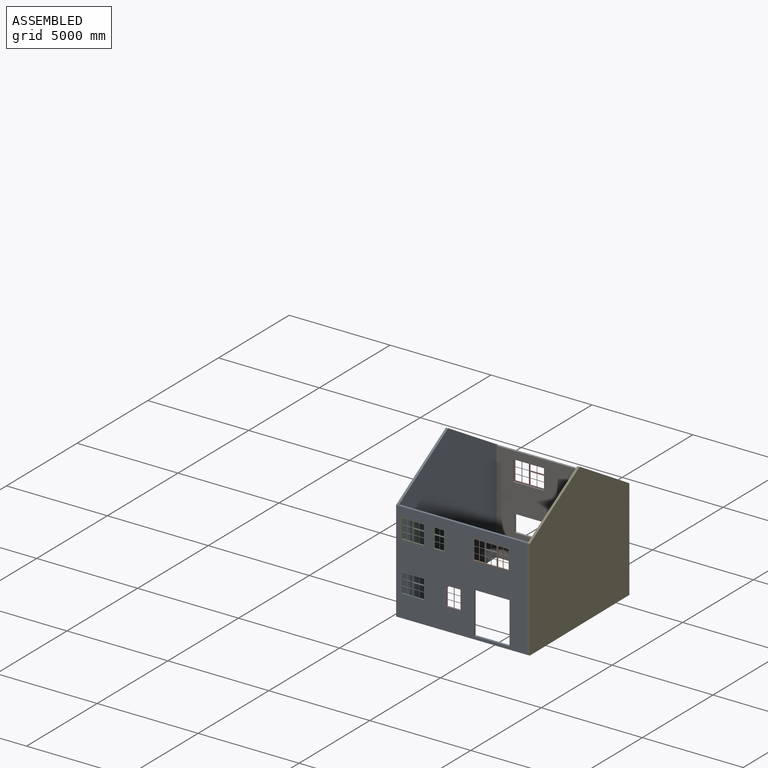
[diagram: assembled view]
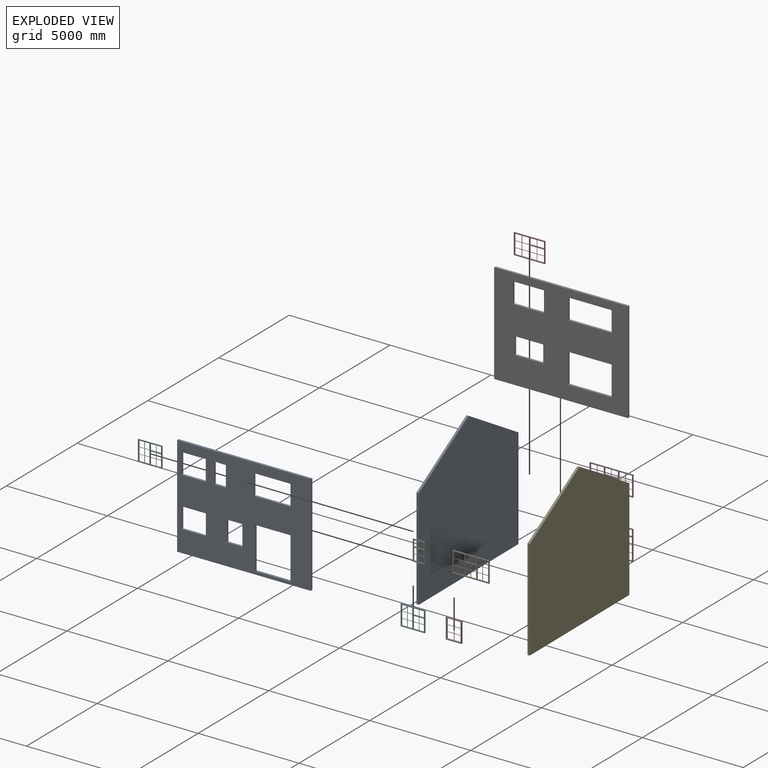
[diagram: exploded view]
GUIDED TOUR — MATED ASSEMBLY (Onshape document ad327fb9f70c7c02ca166393, AutoMate assembly ad327fb9f70c7c02ca166393_e42b151d0dddc3678c9ccd06_790ce3b8b7bdf82932ab4021_default)

This assembly has 12 components, labeled P0..P11 below (a component is one placed occurrence of a part; the same part can appear more than once), held together by 33 mates. A mate is a constraint between two components; its type names the relative motion it leaves free:
  PLANAR — leaves sliding in the plane through the listed point (normal = the listed direction) and rotation about that normal free.
Axis/direction vectors are unit vectors and 'through' points are millimeter coordinates, both in the assembly's world frame.

MATES
  1. PLANAR "Planar 12": P1 <-> P8, direction (0.005, -1.000, 0.000) through (1860.18, -4066.74, 3330.43) mm
  2. PLANAR "Planar 16": P9 <-> P6, direction (0.000, 0.000, 1.000) through (1852.17, 3008.31, 1499.83) mm
  3. PLANAR "Planar 18": P9 <-> P6, direction (-0.005, 1.000, 0.000) through (1852.06, 3033.31, 827.41) mm
  4. PLANAR "Planar 8": P0 <-> P6, direction (-0.005, 1.000, 0.000) through (-2811.39, 3011.17, 1812.83) mm
  5. PLANAR "Planar 25": P5 <-> P8, direction (0.000, 0.000, 1.000) through (-2011.20, -4085.11, 1402.83) mm
  6. PLANAR "Planar 21": P8 <-> P2, direction (0.005, -1.000, 0.000) through (438.30, -4073.49, 1857.86) mm
  7. PLANAR "Planar 22": P7 <-> P6, direction (0.000, 0.000, 1.000) through (-1175.79, 2993.93, 3932.83) mm
  8. PLANAR "Planar 7": P6 <-> P0, direction (-1.000, -0.005, 0.000) through (-2867.13, 2954.90, 1812.83) mm
  9. PLANAR "Planar 6": P8 <-> P4, direction (0.000, 0.000, -1.000) through (466.01, -4017.35, -687.17) mm
  10. PLANAR "Planar 31": P10 <-> P8, direction (0.005, -1.000, 0.000) through (-713.71, -4078.95, 3495.33) mm
  11. PLANAR "Planar 3": P6 <-> P4, direction (0.000, 0.000, -1.000) through (432.84, 2970.57, -687.17) mm
  12. PLANAR "Planar 14": P3 <-> P6, direction (0.000, 0.000, 1.000) through (1860.17, 3008.34, 3932.83) mm
  13. PLANAR "Planar 26": P5 <-> P8, direction (-1.000, -0.005, 0.000) through (-2608.81, -4062.95, 892.83) mm
  14. PLANAR "Planar 19": P8 <-> P2, direction (1.000, 0.005, 0.000) through (-2608.95, -4031.95, 3322.83) mm
  15. PLANAR "Planar 24": P7 <-> P6, direction (-0.005, 1.000, 0.000) through (-1136.16, 3019.12, 3438.84) mm
  16. PLANAR "Planar 1": P6 <-> P4, direction (1.000, 0.005, 0.000) through (3732.80, 2986.23, 1812.83) mm
  17. PLANAR "Planar 5": P8 <-> P4, direction (1.000, 0.005, 0.000) through (3765.97, -4001.69, 1812.83) mm
  18. PLANAR "Planar 28": P5 <-> P8, direction (0.005, -1.000, 0.000) through (-1984.51, -4084.99, 906.75) mm
  19. PLANAR "Planar 4": P4 <-> P8, direction (0.005, -1.000, 0.000) through (3710.24, -4057.95, 1812.83) mm
  20. PLANAR "Planar 9": P0 <-> P6, direction (0.000, 0.000, -1.000) through (-2794.54, -538.79, -687.17) mm
  21. PLANAR "Planar 30": P10 <-> P8, direction (1.000, 0.005, 0.000) through (-423.83, -4052.58, 3322.83) mm
  22. PLANAR "Planar 32": P11 <-> P8, direction (0.000, 0.000, 1.000) through (6.10, -4038.04, 1402.83) mm
  23. PLANAR "Planar 17": P9 <-> P6, direction (-1.000, -0.005, 0.000) through (779.69, 3003.22, 764.83) mm
  24. PLANAR "Planar 11": P1 <-> P8, direction (1.000, 0.005, 0.000) through (2766.13, -4037.43, 3325.33) mm
  25. PLANAR "Planar 20": P2 <-> P8, direction (0.000, 0.000, 1.000) through (-2013.81, -4060.13, 3832.83) mm
  26. PLANAR "Planar 13": P6 <-> P3, direction (-1.000, -0.005, 0.000) through (2932.81, 2982.44, 3422.83) mm
  27. PLANAR "Planar 23": P7 <-> P6, direction (1.000, 0.005, 0.000) through (-408.30, 2997.58, 3422.83) mm
  28. PLANAR "Planar 34": P11 <-> P8, direction (0.005, -1.000, 0.000) through (6.28, -4075.54, 892.83) mm
  29. PLANAR "Planar 29": P10 <-> P8, direction (0.000, 0.000, 1.000) through (-713.83, -4053.95, 3832.83) mm
  30. PLANAR "Planar 2": P4 <-> P6, direction (-0.005, 1.000, 0.000) through (3676.54, 3041.97, 1812.83) mm
  31. PLANAR "Planar 10": P1 <-> P8, direction (0.000, 0.000, 1.000) through (1858.64, -4041.74, 3837.83) mm
  32. PLANAR "Planar 33": P11 <-> P8, direction (1.000, 0.005, 0.000) through (391.10, -4036.21, 892.83) mm
  33. PLANAR "Planar 15": P3 <-> P6, direction (-0.005, 1.000, 0.000) through (1860.06, 3033.34, 3887.83) mm

ASSEMBLY ORDER
  1. P4 — the base component [order verified]
  2. P3 [order verified]
  3. P9 [order verified]
  4. P1 [order verified]
  5. P8 [order verified]
  6. P6 [order verified]
  7. P11 [order verified]
  8. P10 [order verified]
  9. P7 [order verified]
  10. P5 [order verified]
  11. P2 [order verified]
  12. P0 [order verified]
Order-tag legend:
  [order verified] — this step's position reverses a verified removal order: the component was checked to insert without passing through the ones already placed.

Of the 12 components, 12 carry the full construction recipe — the FeatureScript program that regenerates the part's solid from scratch; the rest are supplied as boundary geometry only.
Each toured component is shown spotlighted twice — in the assembled view, then in the exploded view, where a leader line traces a displaced component back to its assembled socket (saturated green if recipe-attached, orange if geometry-only; every other component desaturated gray) — followed by its recipe or geometry summary and the mates that hold it.
NOTE — this tour is split across 2 documents so each fits a 32k-token context. This is document 1: the component sections continue in the remaining 1 document, each repeating the header above.
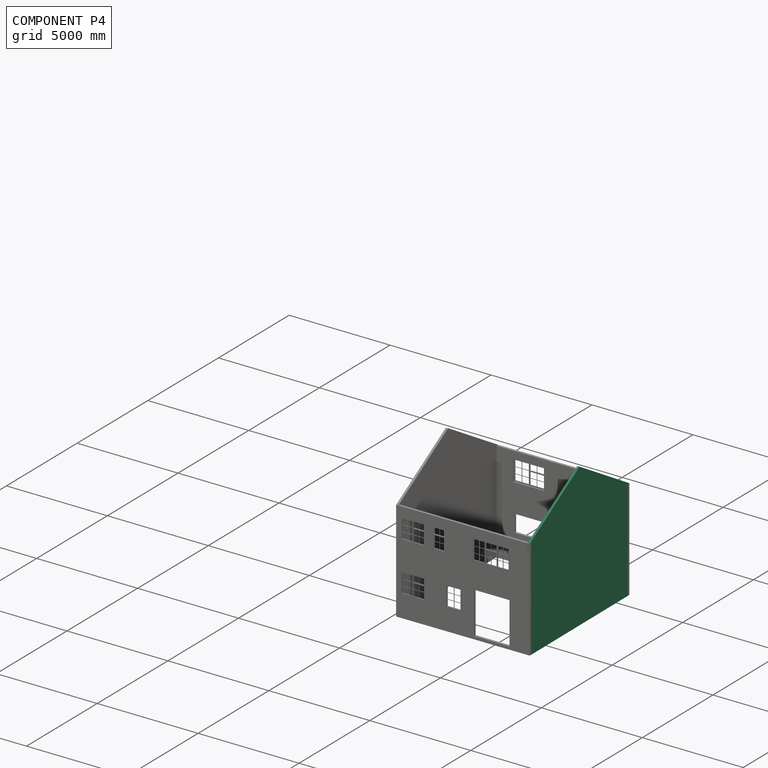
[diagram: component P4 — assembled]
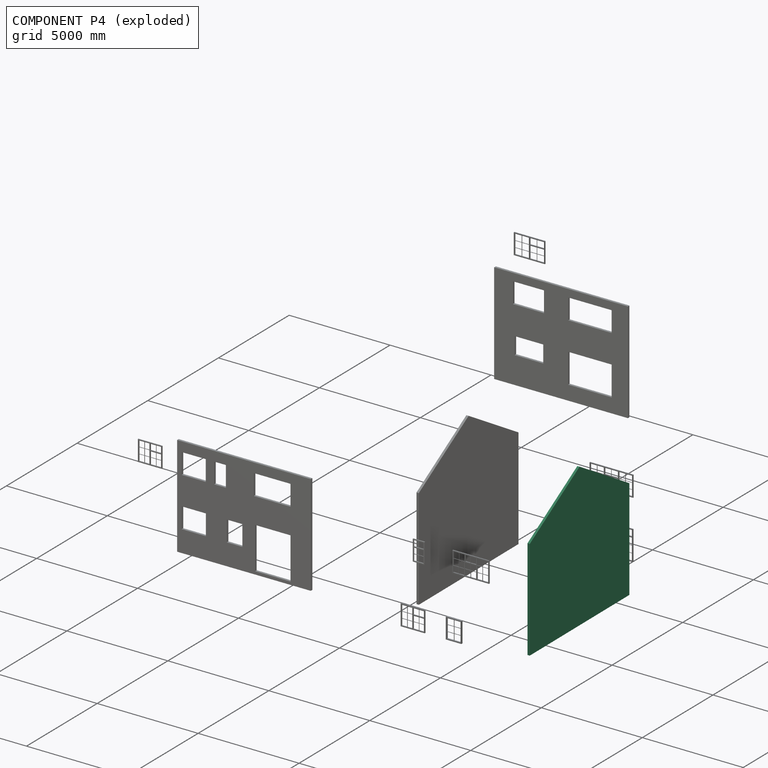
[diagram: component P4 — exploded]
COMPONENT P4 — same part as P0 (CADFS 00879208); its construction recipe is shown at P0.
Held by: PLANAR mate "Planar 6" to P8; PLANAR mate "Planar 3" to P6; PLANAR mate "Planar 1" to P6; PLANAR mate "Planar 5" to P8; PLANAR mate "Planar 4" to P8; PLANAR mate "Planar 2" to P6.
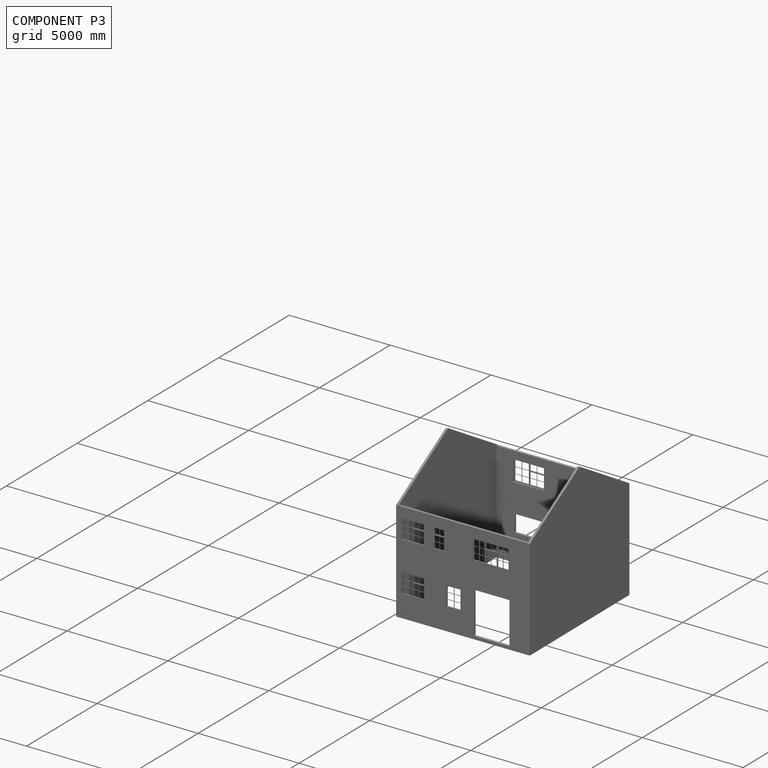
[diagram: component P3 — assembled]
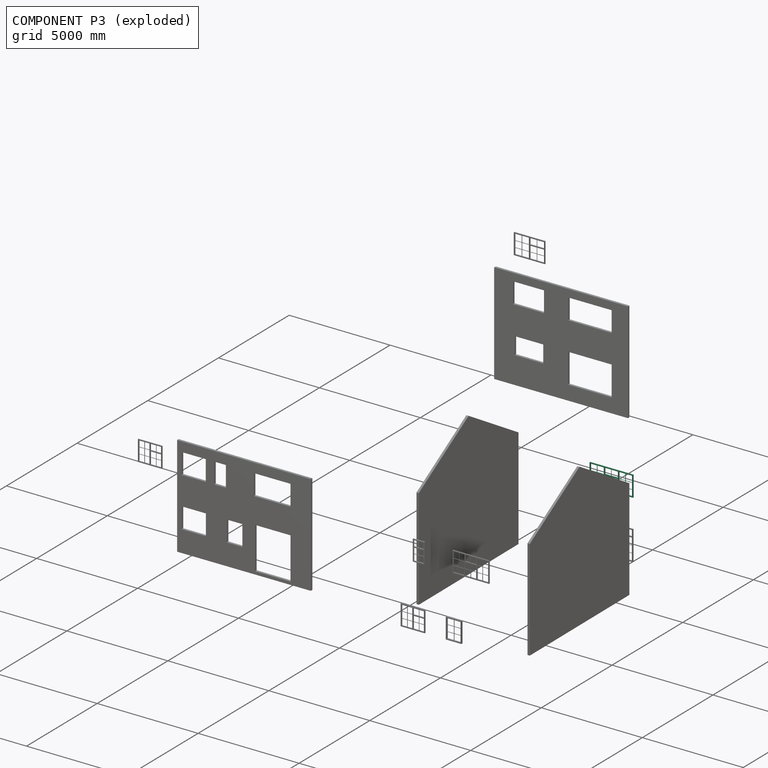
[diagram: component P3 — exploded]
COMPONENT P3 — recipe-attached (CADFS 00879211, mesh-verified: the recipe's output STEP matches this component's geometry to below the mesh-comparison resolution (tessellation chordal tolerance ~3.56 mm)).
Held by: PLANAR mate "Planar 14" to P6; PLANAR mate "Planar 13" to P6; PLANAR mate "Planar 15" to P6.
Construction recipe (FeatureScript — the CAD program that rebuilds this solid; sketch coordinates are in the units given by the * unit suffixes, e.g. mm):

FeatureScript 2599;
import(path : "onshape/std/geometry.fs", version : "2599.0");
import(path : "onshape/std/common.fs", version : "2599.0");
const mm = millimeter;
const VERTEX = EntityType.VERTEX;
const EDGE = EntityType.EDGE;
const FACE = EntityType.FACE;
const BODY = EntityType.BODY;
function v(x, y){return vector(x, y);}
function OD(order){return orderDisambiguation(order);}
function OSD(set){return originalSetDisambiguation(set);}
function TD(topology){return topologyDisambiguation(topology);}
function TDD(query){return trueDependencyDisambiguation(query);}
function sQuery(a, b, c) {return sketchEntityQuery(a, b, c);}

annotation { "Feature Type Name" : "Feature", "Feature Type Description" : "" }
export const myFeature = defineFeature(function(context is Context, id is Id, definition is map)
    precondition{}
    {
        {
            var Q0;
            Q0=qCreatedBy(makeId("Front.planeOp"),FACE);
            var sketch = newSketch(context, id + "F0", { "sketchPlane" : qUnion([Q0])});
            skLineSegment(sketch, "E0.bottom", {"start": v(0, 0) * mm, "end": v(2145, 0) * mm});
            skLineSegment(sketch, "E0.top", {"start": v(0, 1020) * mm, "end": v(2145, 1020) * mm});
            skLineSegment(sketch, "E0.left", {"start": v(0, 0) * mm, "end": v(0, 1020) * mm});
            skLineSegment(sketch, "E0.right", {"start": v(2145, 0) * mm, "end": v(2145, 1020) * mm});
            skLineSegment(sketch, "E1.bottom", {"start": v(45, 975) * mm, "end": v(700, 975) * mm});
            skLineSegment(sketch, "E1.top", {"start": v(45, 45) * mm, "end": v(700, 45) * mm});
            skLineSegment(sketch, "E1.left", {"start": v(45, 975) * mm, "end": v(45, 45) * mm});
            skLineSegment(sketch, "E1.right", {"start": v(700, 975) * mm, "end": v(700, 45) * mm});
            skLineSegment(sketch, "E2.bottom", {"start": v(745, 975) * mm, "end": v(1400, 975) * mm});
            skLineSegment(sketch, "E2.top", {"start": v(745, 682.5) * mm, "end": v(1400, 682.5) * mm});
            skLineSegment(sketch, "E2.left", {"start": v(745, 975) * mm, "end": v(745, 682.5) * mm});
            skLineSegment(sketch, "E2.right", {"start": v(1400, 975) * mm, "end": v(1400, 682.5) * mm});
            skLineSegment(sketch, "E3.bottom", {"start": v(745, 637.5) * mm, "end": v(1400, 637.5) * mm});
            skLineSegment(sketch, "E3.top", {"start": v(745, 45) * mm, "end": v(1400, 45) * mm});
            skLineSegment(sketch, "E3.left", {"start": v(745, 637.5) * mm, "end": v(745, 45) * mm});
            skLineSegment(sketch, "E3.right", {"start": v(1400, 637.5) * mm, "end": v(1400, 45) * mm});
            skLineSegment(sketch, "E4.bottom", {"start": v(1445, 975) * mm, "end": v(2100, 975) * mm});
            skLineSegment(sketch, "E4.top", {"start": v(1445, 45) * mm, "end": v(2100, 45) * mm});
            skLineSegment(sketch, "E4.left", {"start": v(1445, 975) * mm, "end": v(1445, 45) * mm});
            skLineSegment(sketch, "E4.right", {"start": v(2100, 975) * mm, "end": v(2100, 45) * mm});
            skSolve(sketch);
        }
        {
            var Q0;
            Q0=qSketchRegion(id+"F0",true);
            extrude(context, id + "F1", {"entities" : qUnion([Q0]), "depth" : 50 * mm, "offsetDistance" : 25 * mm});
        }
        {
            var Q0;
            Q0=qCreatedBy(makeId("Front.planeOp"),FACE);
            var sketch = newSketch(context, id + "F2", { "sketchPlane" : qUnion([Q0])});
            skLineSegment(sketch, "E5.bottom", {"start": v(1765, 975) * mm, "end": v(1780, 975) * mm});
            skLineSegment(sketch, "E5.top", {"start": v(1765, 45) * mm, "end": v(1780, 45) * mm});
            skLineSegment(sketch, "E5.left", {"start": v(1765, 975) * mm, "end": v(1765, 660) * mm});
            skLineSegment(sketch, "E5.right", {"start": v(1780, 975) * mm, "end": v(1780, 660) * mm});
            skLineSegment(sketch, "E6.bottom", {"start": v(1445, 660) * mm, "end": v(1765, 660) * mm});
            skLineSegment(sketch, "E6.top", {"start": v(1445, 675) * mm, "end": v(1765, 675) * mm});
            skLineSegment(sketch, "E6.left", {"start": v(1445, 675) * mm, "end": v(1445, 660) * mm});
            skLineSegment(sketch, "E6.right", {"start": v(2100, 675) * mm, "end": v(2100, 660) * mm});
            skLineSegment(sketch, "E7.bottom", {"start": v(1445, 345) * mm, "end": v(1765, 345) * mm});
            skLineSegment(sketch, "E7.top", {"start": v(1445, 360) * mm, "end": v(1765, 360) * mm});
            skLineSegment(sketch, "E7.left", {"start": v(1445, 345) * mm, "end": v(1445, 360) * mm});
            skLineSegment(sketch, "E7.right", {"start": v(2100, 345) * mm, "end": v(2100, 360) * mm});
            skLineSegment(sketch, "E8.trimOffspring", {"start": v(1765, 675) * mm, "end": v(1765, 360) * mm});
            skLineSegment(sketch, "E9.trimOffspring", {"start": v(1780, 660) * mm, "end": v(2100, 660) * mm});
            skLineSegment(sketch, "E10.trimOffspring", {"start": v(1780, 675) * mm, "end": v(1780, 360) * mm});
            skLineSegment(sketch, "E11.trimOffspring", {"start": v(1780, 675) * mm, "end": v(2100, 675) * mm});
            skLineSegment(sketch, "E12.trimOffspring", {"start": v(1780, 360) * mm, "end": v(2100, 360) * mm});
            skLineSegment(sketch, "E13.trimOffspring", {"start": v(1765, 345) * mm, "end": v(1765, 45) * mm});
            skLineSegment(sketch, "E14.trimOffspring", {"start": v(1780, 345) * mm, "end": v(2100, 345) * mm});
            skLineSegment(sketch, "E15.trimOffspring", {"start": v(1780, 345) * mm, "end": v(1780, 45) * mm});
            skLineSegment(sketch, "E16.bottom", {"start": v(1065, 975) * mm, "end": v(1080, 975) * mm});
            skLineSegment(sketch, "E16.top", {"start": v(1065, 682.5) * mm, "end": v(1080, 682.5) * mm});
            skLineSegment(sketch, "E16.left", {"start": v(1065, 975) * mm, "end": v(1065, 682.5) * mm});
            skLineSegment(sketch, "E16.right", {"start": v(1080, 975) * mm, "end": v(1080, 682.5) * mm});
            skLineSegment(sketch, "E17.bottom", {"start": v(1065, 637.5) * mm, "end": v(1080, 637.5) * mm});
            skLineSegment(sketch, "E17.top", {"start": v(1065, 45) * mm, "end": v(1080, 45) * mm});
            skLineSegment(sketch, "E17.left", {"start": v(1065, 637.5) * mm, "end": v(1065, 360) * mm});
            skLineSegment(sketch, "E17.right", {"start": v(1080, 637.5) * mm, "end": v(1080, 360) * mm});
            skLineSegment(sketch, "E18.bottom", {"start": v(745, 360) * mm, "end": v(1065, 360) * mm});
            skLineSegment(sketch, "E18.top", {"start": v(745, 345) * mm, "end": v(1065, 345) * mm});
            skLineSegment(sketch, "E18.left", {"start": v(745, 360) * mm, "end": v(745, 345) * mm});
            skLineSegment(sketch, "E18.right", {"start": v(1400, 360) * mm, "end": v(1400, 345) * mm});
            skLineSegment(sketch, "E19.trimOffspring", {"start": v(1080, 360) * mm, "end": v(1400, 360) * mm});
            skLineSegment(sketch, "E20.trimOffspring", {"start": v(1065, 345) * mm, "end": v(1065, 45) * mm});
            skLineSegment(sketch, "E21.trimOffspring", {"start": v(1080, 345) * mm, "end": v(1400, 345) * mm});
            skLineSegment(sketch, "E22.trimOffspring", {"start": v(1080, 345) * mm, "end": v(1080, 45) * mm});
            skLineSegment(sketch, "E23.bottom", {"start": v(365, 975) * mm, "end": v(380, 975) * mm});
            skLineSegment(sketch, "E23.top", {"start": v(365, 45) * mm, "end": v(380, 45) * mm});
            skLineSegment(sketch, "E23.left", {"start": v(365, 975) * mm, "end": v(365, 675) * mm});
            skLineSegment(sketch, "E23.right", {"start": v(380, 975) * mm, "end": v(380, 675) * mm});
            skLineSegment(sketch, "E24.bottom", {"start": v(45, 660) * mm, "end": v(365, 660) * mm});
            skLineSegment(sketch, "E24.top", {"start": v(45, 675) * mm, "end": v(365, 675) * mm});
            skLineSegment(sketch, "E24.left", {"start": v(45, 675) * mm, "end": v(45, 660) * mm});
            skLineSegment(sketch, "E24.right", {"start": v(700, 675) * mm, "end": v(700, 660) * mm});
            skLineSegment(sketch, "E25.bottom", {"start": v(45, 360) * mm, "end": v(365, 360) * mm});
            skLineSegment(sketch, "E25.top", {"start": v(45, 345) * mm, "end": v(365, 345) * mm});
            skLineSegment(sketch, "E25.left", {"start": v(45, 360) * mm, "end": v(45, 345) * mm});
            skLineSegment(sketch, "E25.right", {"start": v(700, 360) * mm, "end": v(700, 345) * mm});
            skLineSegment(sketch, "E26.trimOffspring", {"start": v(380, 675) * mm, "end": v(700, 675) * mm});
            skLineSegment(sketch, "E27.trimOffspring", {"start": v(365, 660) * mm, "end": v(365, 360) * mm});
            skLineSegment(sketch, "E28.trimOffspring", {"start": v(380, 660) * mm, "end": v(700, 660) * mm});
            skLineSegment(sketch, "E29.trimOffspring", {"start": v(380, 660) * mm, "end": v(380, 360) * mm});
            skLineSegment(sketch, "E30.trimOffspring", {"start": v(380, 360) * mm, "end": v(700, 360) * mm});
            skLineSegment(sketch, "E31.trimOffspring", {"start": v(365, 345) * mm, "end": v(365, 45) * mm});
            skLineSegment(sketch, "E32.trimOffspring", {"start": v(380, 345) * mm, "end": v(700, 345) * mm});
            skLineSegment(sketch, "E33.trimOffspring", {"start": v(380, 345) * mm, "end": v(380, 45) * mm});
            skSolve(sketch);
        }
        {
            var Q0;
            Q0=qSketchRegion(id+"F2",true);
            extrude(context, id + "F3", {"entities" : qUnion([Q0]), "operationType" : NewBodyOperationType.ADD, "depth" : 20 * mm, "offsetDistance" : 25 * mm});
        }
    });
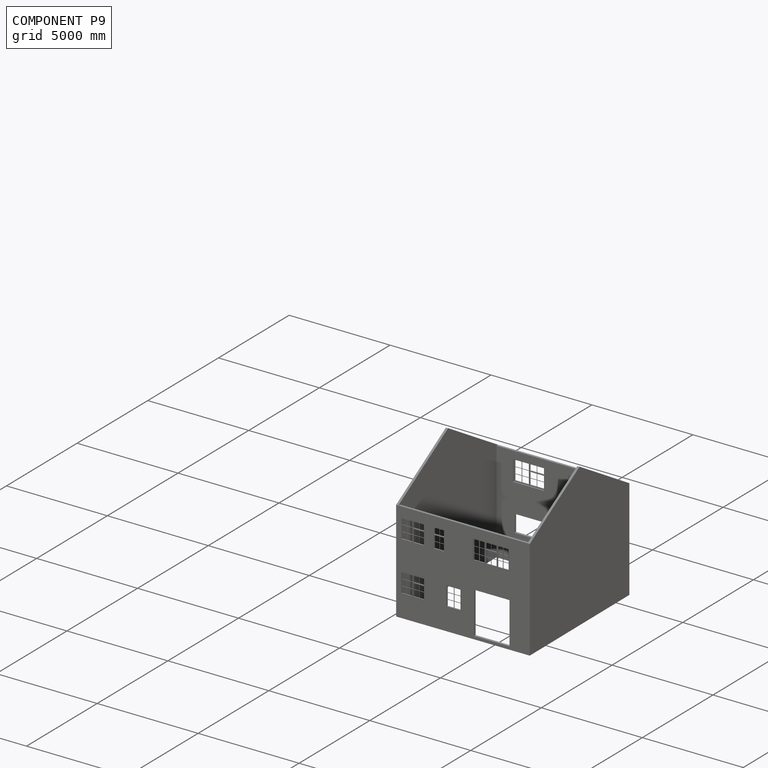
[diagram: component P9 — assembled]
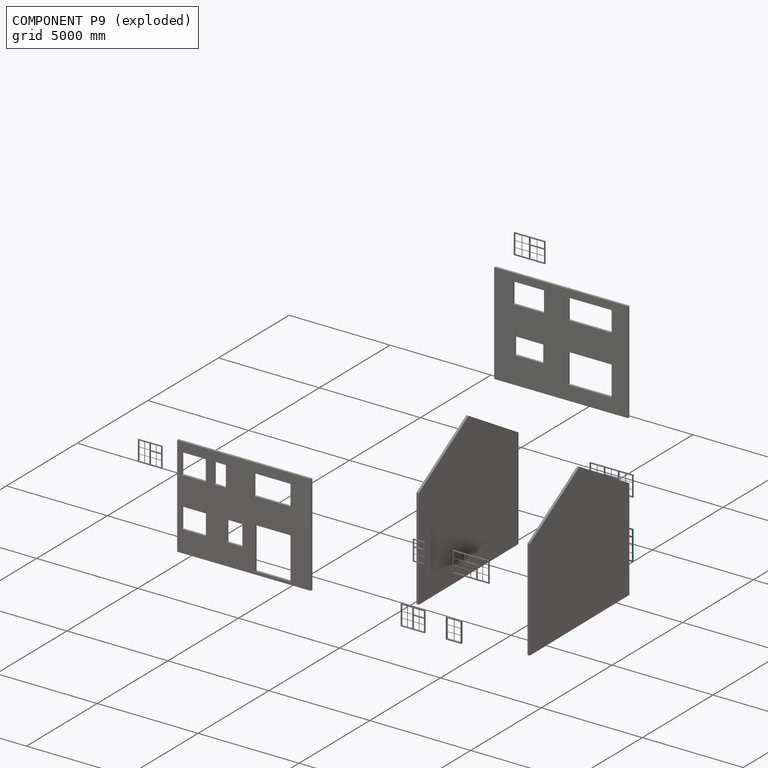
[diagram: component P9 — exploded]
COMPONENT P9 — recipe-attached (CADFS 00879212, mesh-verified: the recipe's output STEP matches this component's geometry to below the mesh-comparison resolution (tessellation chordal tolerance ~3.9 mm)).
Held by: PLANAR mate "Planar 16" to P6; PLANAR mate "Planar 18" to P6; PLANAR mate "Planar 17" to P6.
Construction recipe (FeatureScript — the CAD program that rebuilds this solid; sketch coordinates are in the units given by the * unit suffixes, e.g. mm):

FeatureScript 2599;
import(path : "onshape/std/geometry.fs", version : "2599.0");
import(path : "onshape/std/common.fs", version : "2599.0");
const mm = millimeter;
const VERTEX = EntityType.VERTEX;
const EDGE = EntityType.EDGE;
const FACE = EntityType.FACE;
const BODY = EntityType.BODY;
function v(x, y){return vector(x, y);}
function OD(order){return orderDisambiguation(order);}
function OSD(set){return originalSetDisambiguation(set);}
function TD(topology){return topologyDisambiguation(topology);}
function TDD(query){return trueDependencyDisambiguation(query);}
function sQuery(a, b, c) {return sketchEntityQuery(a, b, c);}

annotation { "Feature Type Name" : "Feature", "Feature Type Description" : "" }
export const myFeature = defineFeature(function(context is Context, id is Id, definition is map)
    precondition{}
    {
        {
            var Q0;
            Q0=qCreatedBy(makeId("Front.planeOp"),FACE);
            var sketch = newSketch(context, id + "F0", { "sketchPlane" : qUnion([Q0])});
            skLineSegment(sketch, "E0.bottom", {"start": v(0, 0) * mm, "end": v(2145, 0) * mm});
            skLineSegment(sketch, "E0.top", {"start": v(0, 1470) * mm, "end": v(2145, 1470) * mm});
            skLineSegment(sketch, "E0.left", {"start": v(0, 0) * mm, "end": v(0, 1470) * mm});
            skLineSegment(sketch, "E0.right", {"start": v(2145, 0) * mm, "end": v(2145, 1470) * mm});
            skLineSegment(sketch, "E1.bottom", {"start": v(45, 1425) * mm, "end": v(700, 1425) * mm});
            skLineSegment(sketch, "E1.top", {"start": v(45, 45) * mm, "end": v(700, 45) * mm});
            skLineSegment(sketch, "E1.left", {"start": v(45, 1425) * mm, "end": v(45, 1132.5) * mm});
            skLineSegment(sketch, "E1.right", {"start": v(700, 1425) * mm, "end": v(700, 1132.5) * mm});
            skLineSegment(sketch, "E2.bottom", {"start": v(745, 1425) * mm, "end": v(1400, 1425) * mm});
            skLineSegment(sketch, "E2.top", {"start": v(745, 1132.5) * mm, "end": v(1400, 1132.5) * mm});
            skLineSegment(sketch, "E2.left", {"start": v(745, 1425) * mm, "end": v(745, 1132.5) * mm});
            skLineSegment(sketch, "E2.right", {"start": v(1400, 1425) * mm, "end": v(1400, 1132.5) * mm});
            skLineSegment(sketch, "E3.bottom", {"start": v(745, 1087.5) * mm, "end": v(1400, 1087.5) * mm});
            skLineSegment(sketch, "E3.top", {"start": v(745, 45) * mm, "end": v(1400, 45) * mm});
            skLineSegment(sketch, "E3.left", {"start": v(745, 1087.5) * mm, "end": v(745, 45) * mm});
            skLineSegment(sketch, "E3.right", {"start": v(1400, 1087.5) * mm, "end": v(1400, 45) * mm});
            skLineSegment(sketch, "E4.bottom", {"start": v(1445, 1425) * mm, "end": v(2100, 1425) * mm});
            skLineSegment(sketch, "E4.top", {"start": v(1445, 45) * mm, "end": v(2100, 45) * mm});
            skLineSegment(sketch, "E4.left", {"start": v(1445, 1425) * mm, "end": v(1445, 1132.5) * mm});
            skLineSegment(sketch, "E4.right", {"start": v(2100, 1425) * mm, "end": v(2100, 1132.5) * mm});
            skLineSegment(sketch, "E5.bottom", {"start": v(45, 1132.5) * mm, "end": v(700, 1132.5) * mm});
            skLineSegment(sketch, "E5.top", {"start": v(45, 1087.5) * mm, "end": v(700, 1087.5) * mm});
            skLineSegment(sketch, "E6.trimOffspring", {"start": v(45, 1087.5) * mm, "end": v(45, 45) * mm});
            skLineSegment(sketch, "E7.trimOffspring", {"start": v(700, 1087.5) * mm, "end": v(700, 45) * mm});
            skLineSegment(sketch, "E8.bottom", {"start": v(1445, 1132.5) * mm, "end": v(2100, 1132.5) * mm});
            skLineSegment(sketch, "E8.top", {"start": v(1445, 1087.5) * mm, "end": v(2100, 1087.5) * mm});
            skLineSegment(sketch, "E9.trimOffspring", {"start": v(1445, 1087.5) * mm, "end": v(1445, 45) * mm});
            skLineSegment(sketch, "E10.trimOffspring", {"start": v(2100, 1087.5) * mm, "end": v(2100, 45) * mm});
            skSolve(sketch);
        }
        {
            var Q0;
            Q0=qSketchRegion(id+"F0",true);
            extrude(context, id + "F1", {"entities" : qUnion([Q0]), "depth" : 50 * mm, "offsetDistance" : 25 * mm});
        }
        {
            var Q0;
            Q0=qCreatedBy(makeId("Front.planeOp"),FACE);
            var sketch = newSketch(context, id + "F2", { "sketchPlane" : qUnion([Q0])});
            skLineSegment(sketch, "E11.bottom", {"start": v(45, 750) * mm, "end": v(365, 750) * mm});
            skLineSegment(sketch, "E11.top", {"start": v(45, 735) * mm, "end": v(365, 735) * mm});
            skLineSegment(sketch, "E11.left", {"start": v(45, 750) * mm, "end": v(45, 735) * mm});
            skLineSegment(sketch, "E11.right", {"start": v(700, 750) * mm, "end": v(700, 735) * mm});
            skLineSegment(sketch, "E12.bottom", {"start": v(45, 397.5) * mm, "end": v(365, 397.5) * mm});
            skLineSegment(sketch, "E12.top", {"start": v(45, 382.5) * mm, "end": v(365, 382.5) * mm});
            skLineSegment(sketch, "E12.left", {"start": v(45, 397.5) * mm, "end": v(45, 382.5) * mm});
            skLineSegment(sketch, "E12.right", {"start": v(700, 397.5) * mm, "end": v(700, 382.5) * mm});
            skLineSegment(sketch, "E13.bottom", {"start": v(365, 1087.5) * mm, "end": v(380, 1087.5) * mm});
            skLineSegment(sketch, "E13.top", {"start": v(365, 45) * mm, "end": v(380, 45) * mm});
            skLineSegment(sketch, "E13.left", {"start": v(365, 1087.5) * mm, "end": v(365, 750) * mm});
            skLineSegment(sketch, "E13.right", {"start": v(380, 1087.5) * mm, "end": v(380, 750) * mm});
            skLineSegment(sketch, "E14.bottom", {"start": v(365, 1425) * mm, "end": v(380, 1425) * mm});
            skLineSegment(sketch, "E14.top", {"start": v(365, 1132.5) * mm, "end": v(380, 1132.5) * mm});
            skLineSegment(sketch, "E14.left", {"start": v(365, 1425) * mm, "end": v(365, 1132.5) * mm});
            skLineSegment(sketch, "E14.right", {"start": v(380, 1425) * mm, "end": v(380, 1132.5) * mm});
            skLineSegment(sketch, "E15.bottom", {"start": v(1065, 1425) * mm, "end": v(1080, 1425) * mm});
            skLineSegment(sketch, "E15.top", {"start": v(1065, 1132.5) * mm, "end": v(1080, 1132.5) * mm});
            skLineSegment(sketch, "E15.left", {"start": v(1065, 1425) * mm, "end": v(1065, 1132.5) * mm});
            skLineSegment(sketch, "E15.right", {"start": v(1080, 1425) * mm, "end": v(1080, 1132.5) * mm});
            skLineSegment(sketch, "E16.bottom", {"start": v(745, 750) * mm, "end": v(1065, 750) * mm});
            skLineSegment(sketch, "E16.top", {"start": v(745, 735) * mm, "end": v(1065, 735) * mm});
            skLineSegment(sketch, "E16.left", {"start": v(745, 750) * mm, "end": v(745, 735) * mm});
            skLineSegment(sketch, "E16.right", {"start": v(1400, 750) * mm, "end": v(1400, 735) * mm});
            skLineSegment(sketch, "E17.bottom", {"start": v(745, 397.5) * mm, "end": v(1065, 397.5) * mm});
            skLineSegment(sketch, "E17.top", {"start": v(745, 382.5) * mm, "end": v(1065, 382.5) * mm});
            skLineSegment(sketch, "E17.left", {"start": v(745, 397.5) * mm, "end": v(745, 382.5) * mm});
            skLineSegment(sketch, "E17.right", {"start": v(1400, 397.5) * mm, "end": v(1400, 382.5) * mm});
            skLineSegment(sketch, "E18.bottom", {"start": v(1065, 1087.5) * mm, "end": v(1080, 1087.5) * mm});
            skLineSegment(sketch, "E18.top", {"start": v(1065, 45) * mm, "end": v(1080, 45) * mm});
            skLineSegment(sketch, "E18.left", {"start": v(1065, 1087.5) * mm, "end": v(1065, 750) * mm});
            skLineSegment(sketch, "E18.right", {"start": v(1080, 1087.5) * mm, "end": v(1080, 750) * mm});
            skLineSegment(sketch, "E19.bottom", {"start": v(1765, 1425) * mm, "end": v(1780, 1425) * mm});
            skLineSegment(sketch, "E19.top", {"start": v(1765, 1132.5) * mm, "end": v(1780, 1132.5) * mm});
            skLineSegment(sketch, "E19.left", {"start": v(1780, 1425) * mm, "end": v(1780, 1132.5) * mm});
            skLineSegment(sketch, "E19.right", {"start": v(1765, 1425) * mm, "end": v(1765, 1132.5) * mm});
            skLineSegment(sketch, "E20.bottom", {"start": v(1765, 1087.5) * mm, "end": v(1780, 1087.5) * mm});
            skLineSegment(sketch, "E20.top", {"start": v(1765, 45) * mm, "end": v(1780, 45) * mm});
            skLineSegment(sketch, "E20.left", {"start": v(1765, 1087.5) * mm, "end": v(1765, 750) * mm});
            skLineSegment(sketch, "E20.right", {"start": v(1780, 1087.5) * mm, "end": v(1780, 750) * mm});
            skLineSegment(sketch, "E21.bottom", {"start": v(1445, 735) * mm, "end": v(1765, 735) * mm});
            skLineSegment(sketch, "E21.top", {"start": v(1445, 750) * mm, "end": v(1765, 750) * mm});
            skLineSegment(sketch, "E21.left", {"start": v(1445, 750) * mm, "end": v(1445, 735) * mm});
            skLineSegment(sketch, "E21.right", {"start": v(2100, 750) * mm, "end": v(2100, 735) * mm});
            skLineSegment(sketch, "E22.bottom", {"start": v(1445, 397.5) * mm, "end": v(1765, 397.5) * mm});
            skLineSegment(sketch, "E22.top", {"start": v(1445, 382.5) * mm, "end": v(1765, 382.5) * mm});
            skLineSegment(sketch, "E22.left", {"start": v(1445, 397.5) * mm, "end": v(1445, 382.5) * mm});
            skLineSegment(sketch, "E22.right", {"start": v(2100, 397.5) * mm, "end": v(2100, 382.5) * mm});
            skLineSegment(sketch, "E23.trimOffspring", {"start": v(380, 750) * mm, "end": v(700, 750) * mm});
            skLineSegment(sketch, "E24.trimOffspring", {"start": v(365, 735) * mm, "end": v(365, 397.5) * mm});
            skLineSegment(sketch, "E25.trimOffspring", {"start": v(380, 735) * mm, "end": v(700, 735) * mm});
            skLineSegment(sketch, "E26.trimOffspring", {"start": v(380, 735) * mm, "end": v(380, 397.5) * mm});
            skLineSegment(sketch, "E27.trimOffspring", {"start": v(380, 397.5) * mm, "end": v(700, 397.5) * mm});
            skLineSegment(sketch, "E28.trimOffspring", {"start": v(365, 382.5) * mm, "end": v(365, 45) * mm});
            skLineSegment(sketch, "E29.trimOffspring", {"start": v(380, 382.5) * mm, "end": v(700, 382.5) * mm});
            skLineSegment(sketch, "E30.trimOffspring", {"start": v(380, 382.5) * mm, "end": v(380, 45) * mm});
            skLineSegment(sketch, "E31.trimOffspring", {"start": v(1080, 750) * mm, "end": v(1400, 750) * mm});
            skLineSegment(sketch, "E32.trimOffspring", {"start": v(1065, 735) * mm, "end": v(1065, 397.5) * mm});
            skLineSegment(sketch, "E33.trimOffspring", {"start": v(1080, 735) * mm, "end": v(1400, 735) * mm});
            skLineSegment(sketch, "E34.trimOffspring", {"start": v(1080, 735) * mm, "end": v(1080, 397.5) * mm});
            skLineSegment(sketch, "E35.trimOffspring", {"start": v(1765, 735) * mm, "end": v(1765, 397.5) * mm});
            skLineSegment(sketch, "E36.trimOffspring", {"start": v(1780, 750) * mm, "end": v(2100, 750) * mm});
            skLineSegment(sketch, "E37.trimOffspring", {"start": v(1780, 735) * mm, "end": v(1780, 397.5) * mm});
            skLineSegment(sketch, "E38.trimOffspring", {"start": v(1780, 735) * mm, "end": v(2100, 735) * mm});
            skLineSegment(sketch, "E39.trimOffspring", {"start": v(1065, 382.5) * mm, "end": v(1065, 45) * mm});
            skLineSegment(sketch, "E40.trimOffspring", {"start": v(1080, 397.5) * mm, "end": v(1400, 397.5) * mm});
            skLineSegment(sketch, "E41.trimOffspring", {"start": v(1080, 382.5) * mm, "end": v(1080, 45) * mm});
            skLineSegment(sketch, "E42.trimOffspring", {"start": v(1080, 382.5) * mm, "end": v(1400, 382.5) * mm});
            skLineSegment(sketch, "E43.trimOffspring", {"start": v(1765, 382.5) * mm, "end": v(1765, 45) * mm});
            skLineSegment(sketch, "E44.trimOffspring", {"start": v(1780, 382.5) * mm, "end": v(1780, 45) * mm});
            skLineSegment(sketch, "E45.trimOffspring", {"start": v(1780, 397.5) * mm, "end": v(2100, 397.5) * mm});
            skLineSegment(sketch, "E46.trimOffspring", {"start": v(1780, 382.5) * mm, "end": v(2100, 382.5) * mm});
            skSolve(sketch);
        }
        {
            var Q0;
            Q0=qSketchRegion(id+"F2",true);
            extrude(context, id + "F3", {"entities" : qUnion([Q0]), "operationType" : NewBodyOperationType.ADD, "depth" : 20 * mm, "offsetDistance" : 25 * mm});
        }
    });
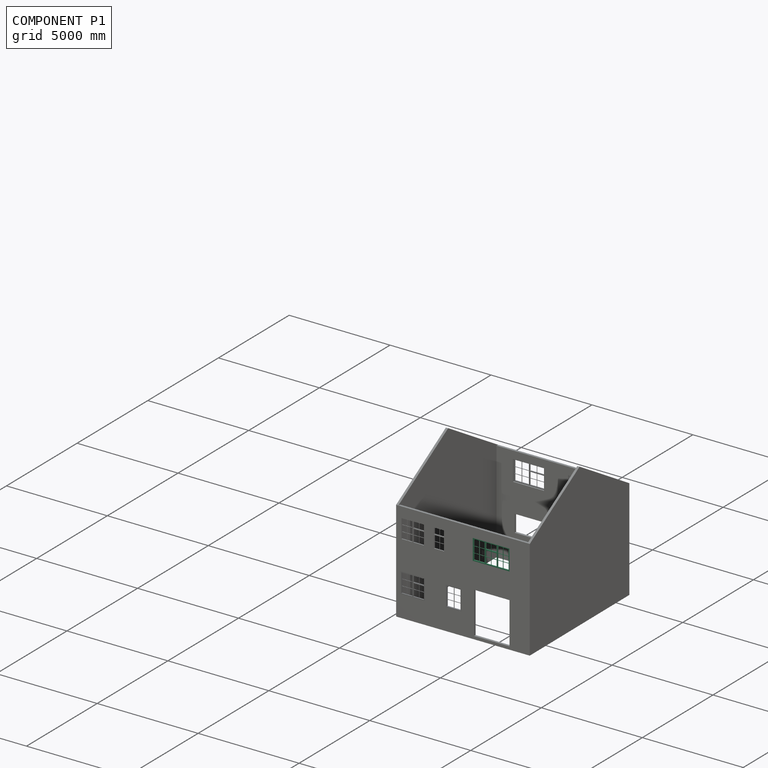
[diagram: component P1 — assembled]
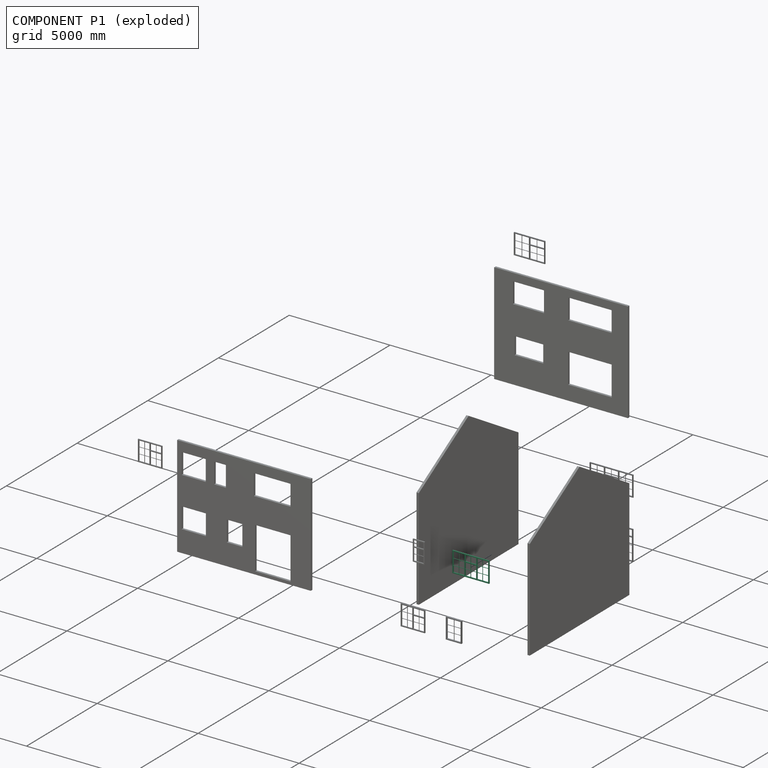
[diagram: component P1 — exploded]
COMPONENT P1 — recipe-attached (CADFS 00879210, mesh-verified: the recipe's output STEP matches this component's geometry to below the mesh-comparison resolution (tessellation chordal tolerance ~3.13 mm)).
Held by: PLANAR mate "Planar 12" to P8; PLANAR mate "Planar 11" to P8; PLANAR mate "Planar 10" to P8.
Construction recipe (FeatureScript — the CAD program that rebuilds this solid; sketch coordinates are in the units given by the * unit suffixes, e.g. mm):

FeatureScript 2599;
import(path : "onshape/std/geometry.fs", version : "2599.0");
import(path : "onshape/std/common.fs", version : "2599.0");
const mm = millimeter;
const VERTEX = EntityType.VERTEX;
const EDGE = EntityType.EDGE;
const FACE = EntityType.FACE;
const BODY = EntityType.BODY;
function v(x, y){return vector(x, y);}
function OD(order){return orderDisambiguation(order);}
function OSD(set){return originalSetDisambiguation(set);}
function TD(topology){return topologyDisambiguation(topology);}
function TDD(query){return trueDependencyDisambiguation(query);}
function sQuery(a, b, c) {return sketchEntityQuery(a, b, c);}

annotation { "Feature Type Name" : "Feature", "Feature Type Description" : "" }
export const myFeature = defineFeature(function(context is Context, id is Id, definition is map)
    precondition{}
    {
        {
            var Q0;
            Q0=qCreatedBy(makeId("Front.planeOp"),FACE);
            var sketch = newSketch(context, id + "F0", { "sketchPlane" : qUnion([Q0])});
            skLineSegment(sketch, "E0.bottom", {"start": v(0, 0) * mm, "end": v(1815, 0) * mm});
            skLineSegment(sketch, "E0.top", {"start": v(0, 1025) * mm, "end": v(1815, 1025) * mm});
            skLineSegment(sketch, "E0.left", {"start": v(0, 0) * mm, "end": v(0, 1025) * mm});
            skLineSegment(sketch, "E0.right", {"start": v(1815, 0) * mm, "end": v(1815, 1025) * mm});
            skLineSegment(sketch, "E1.bottom", {"start": v(45, 980) * mm, "end": v(590, 980) * mm});
            skLineSegment(sketch, "E1.top", {"start": v(45, 45) * mm, "end": v(590, 45) * mm});
            skLineSegment(sketch, "E1.left", {"start": v(45, 980) * mm, "end": v(45, 45) * mm});
            skLineSegment(sketch, "E1.right", {"start": v(590, 980) * mm, "end": v(590, 45) * mm});
            skLineSegment(sketch, "E2.bottom", {"start": v(635, 980) * mm, "end": v(1180, 980) * mm});
            skLineSegment(sketch, "E2.top", {"start": v(635, 687.5) * mm, "end": v(1180, 687.5) * mm});
            skLineSegment(sketch, "E2.left", {"start": v(635, 980) * mm, "end": v(635, 687.5) * mm});
            skLineSegment(sketch, "E2.right", {"start": v(1180, 980) * mm, "end": v(1180, 687.5) * mm});
            skLineSegment(sketch, "E3.bottom", {"start": v(635, 642.5) * mm, "end": v(1180, 642.5) * mm});
            skLineSegment(sketch, "E3.top", {"start": v(635, 45) * mm, "end": v(1180, 45) * mm});
            skLineSegment(sketch, "E3.left", {"start": v(635, 642.5) * mm, "end": v(635, 45) * mm});
            skLineSegment(sketch, "E3.right", {"start": v(1180, 642.5) * mm, "end": v(1180, 45) * mm});
            skLineSegment(sketch, "E4.bottom", {"start": v(1225, 980) * mm, "end": v(1770, 980) * mm});
            skLineSegment(sketch, "E4.top", {"start": v(1225, 45) * mm, "end": v(1770, 45) * mm});
            skLineSegment(sketch, "E4.left", {"start": v(1225, 980) * mm, "end": v(1225, 45) * mm});
            skLineSegment(sketch, "E4.right", {"start": v(1770, 980) * mm, "end": v(1770, 45) * mm});
            skSolve(sketch);
        }
        {
            var Q0;
            Q0=qSketchRegion(id+"F0",true);
            extrude(context, id + "F1", {"entities" : qUnion([Q0]), "depth" : 50 * mm, "offsetDistance" : 25 * mm});
        }
        {
            var Q0;
            Q0=qCreatedBy(makeId("Front.planeOp"),FACE);
            var sketch = newSketch(context, id + "F2", { "sketchPlane" : qUnion([Q0])});
            skLineSegment(sketch, "E5.bottom", {"start": v(310, 980) * mm, "end": v(325, 980) * mm});
            skLineSegment(sketch, "E5.top", {"start": v(310, 45) * mm, "end": v(327.01, 45) * mm});
            skLineSegment(sketch, "E6.bottom", {"start": v(45, 678.33) * mm, "end": v(310, 678.33) * mm});
            skLineSegment(sketch, "E6.top", {"start": v(45, 663.33) * mm, "end": v(310, 663.33) * mm});
            skLineSegment(sketch, "E6.left", {"start": v(45, 678.33) * mm, "end": v(45, 663.33) * mm});
            skLineSegment(sketch, "E6.right", {"start": v(590, 678.33) * mm, "end": v(590, 663.33) * mm});
            skLineSegment(sketch, "E7.bottom", {"start": v(45, 361.67) * mm, "end": v(310, 361.67) * mm});
            skLineSegment(sketch, "E7.top", {"start": v(45, 346.67) * mm, "end": v(310, 346.67) * mm});
            skLineSegment(sketch, "E7.left", {"start": v(45, 361.67) * mm, "end": v(45, 346.67) * mm});
            skLineSegment(sketch, "E7.right", {"start": v(590, 361.67) * mm, "end": v(590, 346.67) * mm});
            skLineSegment(sketch, "E8.trimOffspring", {"start": v(325, 980) * mm, "end": v(325.65, 678.33) * mm});
            skLineSegment(sketch, "E9.trimOffspring", {"start": v(310, 980) * mm, "end": v(310, 678.33) * mm});
            skLineSegment(sketch, "E10.trimOffspring", {"start": v(325.65, 678.33) * mm, "end": v(590, 678.33) * mm});
            skLineSegment(sketch, "E11.trimOffspring", {"start": v(310, 663.33) * mm, "end": v(310, 361.67) * mm});
            skLineSegment(sketch, "E12.trimOffspring", {"start": v(325.68, 663.33) * mm, "end": v(590, 663.33) * mm});
            skLineSegment(sketch, "E13.trimOffspring", {"start": v(325.68, 663.33) * mm, "end": v(326.33, 361.67) * mm});
            skLineSegment(sketch, "E14.trimOffspring", {"start": v(326.33, 361.67) * mm, "end": v(590, 361.67) * mm});
            skLineSegment(sketch, "E15.trimOffspring", {"start": v(310, 346.67) * mm, "end": v(310, 45) * mm});
            skLineSegment(sketch, "E16.trimOffspring", {"start": v(326.36, 346.67) * mm, "end": v(590, 346.67) * mm});
            skLineSegment(sketch, "E17.trimOffspring", {"start": v(326.36, 346.67) * mm, "end": v(327.01, 45) * mm});
            skLineSegment(sketch, "E18.bottom", {"start": v(1483.1, 980) * mm, "end": v(1498.1, 980) * mm});
            skLineSegment(sketch, "E18.top", {"start": v(1483.1, 45) * mm, "end": v(1498.1, 45) * mm});
            skLineSegment(sketch, "E18.left", {"start": v(1483.1, 980) * mm, "end": v(1483.1, 678.33) * mm});
            skLineSegment(sketch, "E18.right", {"start": v(1498.1, 980) * mm, "end": v(1498.1, 678.33) * mm});
            skLineSegment(sketch, "E19.bottom", {"start": v(1225, 678.33) * mm, "end": v(1483.1, 678.33) * mm});
            skLineSegment(sketch, "E19.top", {"start": v(1225, 663.33) * mm, "end": v(1483.1, 663.33) * mm});
            skLineSegment(sketch, "E19.left", {"start": v(1225, 678.33) * mm, "end": v(1225, 663.33) * mm});
            skLineSegment(sketch, "E19.right", {"start": v(1770, 678.33) * mm, "end": v(1770, 663.33) * mm});
            skLineSegment(sketch, "E20.bottom", {"start": v(1225, 346.67) * mm, "end": v(1483.1, 346.67) * mm});
            skLineSegment(sketch, "E20.top", {"start": v(1225, 361.67) * mm, "end": v(1483.1, 361.67) * mm});
            skLineSegment(sketch, "E20.left", {"start": v(1225, 346.67) * mm, "end": v(1225, 361.67) * mm});
            skLineSegment(sketch, "E20.right", {"start": v(1770, 346.67) * mm, "end": v(1770, 361.67) * mm});
            skLineSegment(sketch, "E21.trimOffspring", {"start": v(1483.1, 663.33) * mm, "end": v(1483.1, 361.67) * mm});
            skLineSegment(sketch, "E22.trimOffspring", {"start": v(1498.1, 678.33) * mm, "end": v(1770, 678.33) * mm});
            skLineSegment(sketch, "E23.trimOffspring", {"start": v(1498.1, 663.33) * mm, "end": v(1498.1, 361.67) * mm});
            skLineSegment(sketch, "E24.trimOffspring", {"start": v(1498.1, 663.33) * mm, "end": v(1770, 663.33) * mm});
            skLineSegment(sketch, "E25.trimOffspring", {"start": v(1498.1, 361.67) * mm, "end": v(1770, 361.67) * mm});
            skLineSegment(sketch, "E26.trimOffspring", {"start": v(1483.1, 346.67) * mm, "end": v(1483.1, 45) * mm});
            skLineSegment(sketch, "E27.trimOffspring", {"start": v(1498.1, 346.67) * mm, "end": v(1770, 346.67) * mm});
            skLineSegment(sketch, "E28.trimOffspring", {"start": v(1498.1, 346.67) * mm, "end": v(1498.1, 45) * mm});
            skLineSegment(sketch, "E29.bottom", {"start": v(900, 980) * mm, "end": v(915, 980) * mm});
            skLineSegment(sketch, "E29.top", {"start": v(900, 687.5) * mm, "end": v(915, 687.5) * mm});
            skLineSegment(sketch, "E29.left", {"start": v(900, 980) * mm, "end": v(900, 687.5) * mm});
            skLineSegment(sketch, "E29.right", {"start": v(915, 980) * mm, "end": v(915, 687.5) * mm});
            skLineSegment(sketch, "E30.bottom", {"start": v(900, 642.5) * mm, "end": v(915, 642.5) * mm});
            skLineSegment(sketch, "E30.top", {"start": v(900, 45) * mm, "end": v(915, 45) * mm});
            skLineSegment(sketch, "E30.left", {"start": v(900, 642.5) * mm, "end": v(900, 361.67) * mm});
            skLineSegment(sketch, "E30.right", {"start": v(915, 642.5) * mm, "end": v(915, 361.67) * mm});
            skLineSegment(sketch, "E31.bottom", {"start": v(635, 361.67) * mm, "end": v(900, 361.67) * mm});
            skLineSegment(sketch, "E31.top", {"start": v(635, 346.67) * mm, "end": v(900, 346.67) * mm});
            skLineSegment(sketch, "E31.left", {"start": v(635, 361.67) * mm, "end": v(635, 346.67) * mm});
            skLineSegment(sketch, "E31.right", {"start": v(1180, 361.67) * mm, "end": v(1180, 346.67) * mm});
            skLineSegment(sketch, "E32.trimOffspring", {"start": v(915, 361.67) * mm, "end": v(1180, 361.67) * mm});
            skLineSegment(sketch, "E33.trimOffspring", {"start": v(900, 346.67) * mm, "end": v(900, 45) * mm});
            skLineSegment(sketch, "E34.trimOffspring", {"start": v(915, 346.67) * mm, "end": v(1180, 346.67) * mm});
            skLineSegment(sketch, "E35.trimOffspring", {"start": v(915, 346.67) * mm, "end": v(915, 45) * mm});
            skSolve(sketch);
        }
        {
            var Q0;
            Q0=qSketchRegion(id+"F2",true);
            extrude(context, id + "F3", {"entities" : qUnion([Q0]), "operationType" : NewBodyOperationType.ADD, "depth" : 20 * mm, "offsetDistance" : 25 * mm});
        }
    });
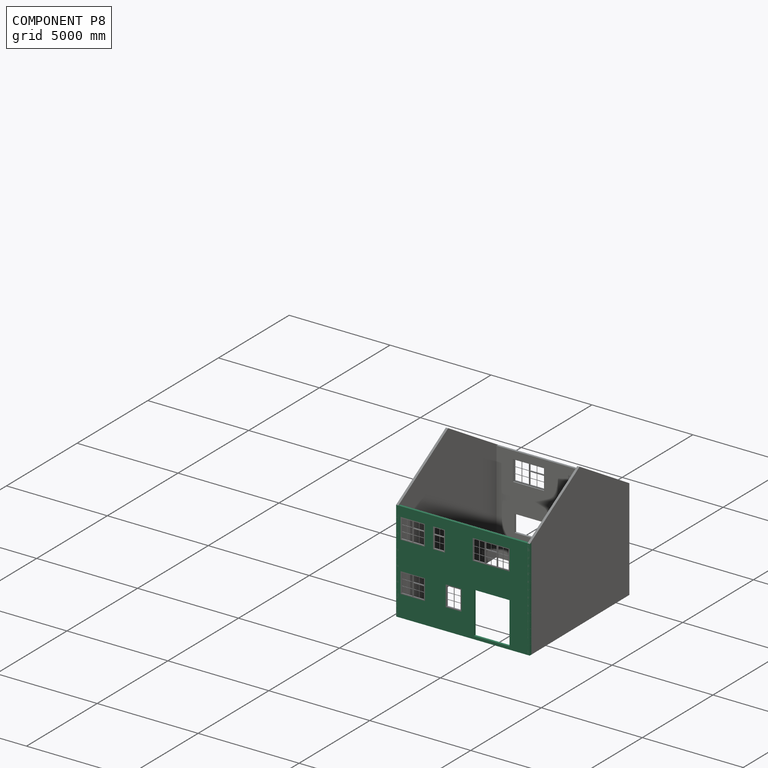
[diagram: component P8 — assembled]
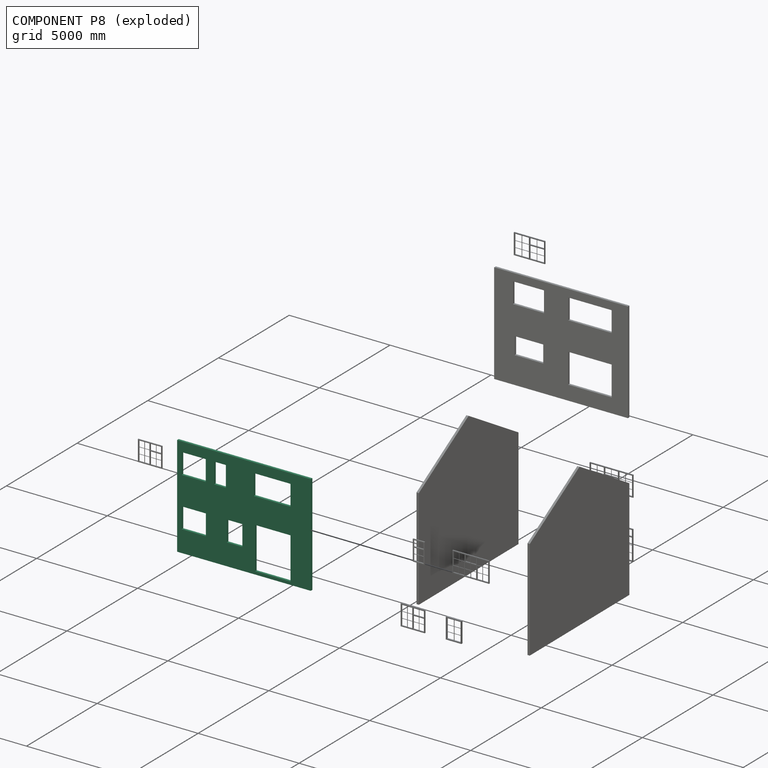
[diagram: component P8 — exploded]
COMPONENT P8 — recipe-attached (CADFS 00879209, mesh-verified: the recipe's output STEP matches this component's geometry to below the mesh-comparison resolution (tessellation chordal tolerance ~12.4 mm)).
Held by: PLANAR mate "Planar 12" to P1; PLANAR mate "Planar 25" to P5; PLANAR mate "Planar 21" to P2; PLANAR mate "Planar 6" to P4; PLANAR mate "Planar 31" to P10; PLANAR mate "Planar 26" to P5; PLANAR mate "Planar 19" to P2; PLANAR mate "Planar 5" to P4; PLANAR mate "Planar 28" to P5; PLANAR mate "Planar 4" to P4; PLANAR mate "Planar 30" to P10; PLANAR mate "Planar 32" to P11; PLANAR mate "Planar 11" to P1; PLANAR mate "Planar 20" to P2; PLANAR mate "Planar 34" to P11; PLANAR mate "Planar 29" to P10; PLANAR mate "Planar 10" to P1; PLANAR mate "Planar 33" to P11.
Construction recipe (FeatureScript — the CAD program that rebuilds this solid; sketch coordinates are in the units given by the * unit suffixes, e.g. mm):

FeatureScript 2599;
import(path : "onshape/std/geometry.fs", version : "2599.0");
import(path : "onshape/std/common.fs", version : "2599.0");
const mm = millimeter;
const VERTEX = EntityType.VERTEX;
const EDGE = EntityType.EDGE;
const FACE = EntityType.FACE;
const BODY = EntityType.BODY;
function v(x, y){return vector(x, y);}
function OD(order){return orderDisambiguation(order);}
function OSD(set){return originalSetDisambiguation(set);}
function TD(topology){return topologyDisambiguation(topology);}
function TDD(query){return trueDependencyDisambiguation(query);}
function sQuery(a, b, c) {return sketchEntityQuery(a, b, c);}

annotation { "Feature Type Name" : "Feature", "Feature Type Description" : "" }
export const myFeature = defineFeature(function(context is Context, id is Id, definition is map)
    precondition{}
    {
        {
            var Q0;
            Q0=qCreatedBy(makeId("Front.planeOp"),FACE);
            var sketch = newSketch(context, id + "F0", { "sketchPlane" : qUnion([Q0])});
            skLineSegment(sketch, "E0.bottom", {"start": v(3288.8, -2773.48) * mm, "end": v(-3311.2, -2773.48) * mm});
            skLineSegment(sketch, "E0.top", {"start": v(3288.8, 2226.52) * mm, "end": v(-3311.2, 2226.52) * mm});
            skLineSegment(sketch, "E0.left", {"start": v(3288.8, -2773.48) * mm, "end": v(3288.8, 2226.52) * mm});
            skLineSegment(sketch, "E0.right", {"start": v(-3311.2, -2773.48) * mm, "end": v(-3311.2, 2226.52) * mm});
            skLineSegment(sketch, "E1.bottom", {"start": v(-2311.2, 1751.52) * mm, "end": v(-496.2, 1751.52) * mm});
            skLineSegment(sketch, "E1.top", {"start": v(-2311.2, 726.52) * mm, "end": v(-496.2, 726.52) * mm});
            skLineSegment(sketch, "E1.left", {"start": v(-2311.2, 1751.52) * mm, "end": v(-2311.2, 726.52) * mm});
            skLineSegment(sketch, "E1.right", {"start": v(-496.2, 1751.52) * mm, "end": v(-496.2, 726.52) * mm});
            skLineSegment(sketch, "E2.bottom", {"start": v(1458.8, 1746.52) * mm, "end": v(878.8, 1746.52) * mm});
            skLineSegment(sketch, "E2.top", {"start": v(1458.8, 726.52) * mm, "end": v(878.8, 726.52) * mm});
            skLineSegment(sketch, "E2.left", {"start": v(1458.8, 1746.52) * mm, "end": v(1458.8, 726.52) * mm});
            skLineSegment(sketch, "E2.right", {"start": v(878.8, 1746.52) * mm, "end": v(878.8, 726.52) * mm});
            skLineSegment(sketch, "E3.bottom", {"start": v(3063.8, 1746.52) * mm, "end": v(1873.8, 1746.52) * mm});
            skLineSegment(sketch, "E3.top", {"start": v(3063.8, 726.52) * mm, "end": v(1873.8, 726.52) * mm});
            skLineSegment(sketch, "E3.left", {"start": v(3063.8, 1746.52) * mm, "end": v(3063.8, 726.52) * mm});
            skLineSegment(sketch, "E3.right", {"start": v(1873.8, 1746.52) * mm, "end": v(1873.8, 726.52) * mm});
            skLineSegment(sketch, "E4.bottom", {"start": v(3063.8, -1703.48) * mm, "end": v(1868.8, -1703.48) * mm});
            skLineSegment(sketch, "E4.top", {"start": v(3063.8, -683.48) * mm, "end": v(1868.8, -683.48) * mm});
            skLineSegment(sketch, "E4.left", {"start": v(3063.8, -1703.48) * mm, "end": v(3063.8, -683.48) * mm});
            skLineSegment(sketch, "E4.right", {"start": v(1868.8, -1703.48) * mm, "end": v(1868.8, -683.48) * mm});
            skLineSegment(sketch, "E5.bottom", {"start": v(833.8, -683.48) * mm, "end": v(63.8, -683.48) * mm});
            skLineSegment(sketch, "E5.top", {"start": v(833.8, -1703.48) * mm, "end": v(63.8, -1703.48) * mm});
            skLineSegment(sketch, "E5.left", {"start": v(833.8, -683.48) * mm, "end": v(833.8, -1703.48) * mm});
            skLineSegment(sketch, "E5.right", {"start": v(63.8, -683.48) * mm, "end": v(63.8, -1703.48) * mm});
            skLineSegment(sketch, "E6.bottom", {"start": v(-561.2, -553.48) * mm, "end": v(-2311.2, -553.48) * mm});
            skLineSegment(sketch, "E6.top", {"start": v(-561.2, -2623.48) * mm, "end": v(-2311.2, -2623.48) * mm});
            skLineSegment(sketch, "E6.left", {"start": v(-561.2, -553.48) * mm, "end": v(-561.2, -2623.48) * mm});
            skLineSegment(sketch, "E6.right", {"start": v(-2311.2, -553.48) * mm, "end": v(-2311.2, -2623.48) * mm});
            skSolve(sketch);
        }
        {
            var Q0;
            Q0=qSketchRegion(id+"F0",true);
            extrude(context, id + "F1", {"entities" : qUnion([Q0]), "depth" : 112 * mm, "offsetDistance" : 25 * mm});
        }
    });
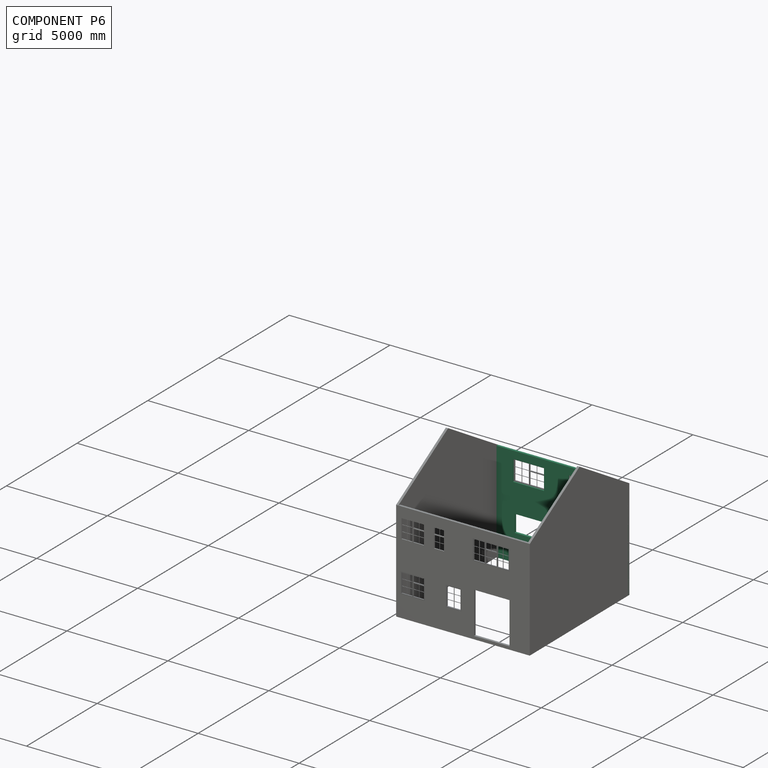
[diagram: component P6 — assembled]
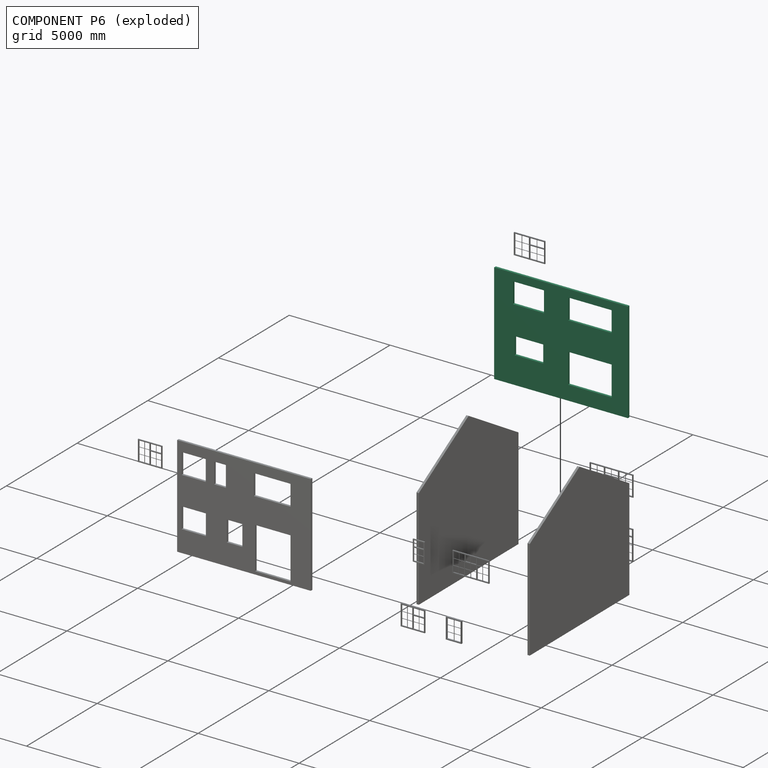
[diagram: component P6 — exploded]
COMPONENT P6 — recipe-attached (CADFS 00846592, mesh-verified: the recipe's output STEP matches this component's geometry to below the mesh-comparison resolution (tessellation chordal tolerance ~12.4 mm)).
Held by: PLANAR mate "Planar 16" to P9; PLANAR mate "Planar 18" to P9; PLANAR mate "Planar 8" to P0; PLANAR mate "Planar 22" to P7; PLANAR mate "Planar 7" to P0; PLANAR mate "Planar 3" to P4; PLANAR mate "Planar 14" to P3; PLANAR mate "Planar 24" to P7; PLANAR mate "Planar 1" to P4; PLANAR mate "Planar 9" to P0; PLANAR mate "Planar 17" to P9; PLANAR mate "Planar 13" to P3; PLANAR mate "Planar 23" to P7; PLANAR mate "Planar 2" to P4; PLANAR mate "Planar 15" to P3.
Construction recipe (FeatureScript — the CAD program that rebuilds this solid; sketch coordinates are in the units given by the * unit suffixes, e.g. mm):

FeatureScript 2522;
import(path : "onshape/std/geometry.fs", version : "2522.0");
import(path : "onshape/std/common.fs", version : "2522.0");
const mm = millimeter;
const VERTEX = EntityType.VERTEX;
const EDGE = EntityType.EDGE;
const FACE = EntityType.FACE;
const BODY = EntityType.BODY;
function v(x, y){return vector(x, y);}
function OD(order){return orderDisambiguation(order);}
function OSD(set){return originalSetDisambiguation(set);}
function TD(topology){return topologyDisambiguation(topology);}
function TDD(query){return trueDependencyDisambiguation(query);}
function sQuery(a, b, c) {return sketchEntityQuery(a, b, c);}

annotation { "Feature Type Name" : "Feature", "Feature Type Description" : "" }
export const myFeature = defineFeature(function(context is Context, id is Id, definition is map)
    precondition{}
    {
        {
            var Q0;
            Q0=qCreatedBy(makeId("Front.planeOp"),FACE);
            var sketch = newSketch(context, id + "F0", { "sketchPlane" : qUnion([Q0])});
            skLineSegment(sketch, "E0.bottom", {"start": v(3288.8, -2773.48) * mm, "end": v(-3311.2, -2773.48) * mm});
            skLineSegment(sketch, "E0.top", {"start": v(3288.8, 2226.52) * mm, "end": v(-3311.2, 2226.52) * mm});
            skLineSegment(sketch, "E0.left", {"start": v(3288.8, -2773.48) * mm, "end": v(3288.8, 2226.52) * mm});
            skLineSegment(sketch, "E0.right", {"start": v(-3311.2, -2773.48) * mm, "end": v(-3311.2, 2226.52) * mm});
            skLineSegment(sketch, "E1.bottom", {"start": v(-2511.2, 1846.52) * mm, "end": v(-366.2, 1846.52) * mm});
            skLineSegment(sketch, "E1.top", {"start": v(-2511.2, 826.52) * mm, "end": v(-366.2, 826.52) * mm});
            skLineSegment(sketch, "E1.left", {"start": v(-2511.2, 1846.52) * mm, "end": v(-2511.2, 826.52) * mm});
            skLineSegment(sketch, "E1.right", {"start": v(-366.2, 1846.52) * mm, "end": v(-366.2, 826.52) * mm});
            skLineSegment(sketch, "E2.bottom", {"start": v(2364.8, 1846.52) * mm, "end": v(829.8, 1846.52) * mm});
            skLineSegment(sketch, "E2.top", {"start": v(2364.8, 826.52) * mm, "end": v(829.8, 826.52) * mm});
            skLineSegment(sketch, "E2.left", {"start": v(2364.8, 1846.52) * mm, "end": v(2364.8, 826.52) * mm});
            skLineSegment(sketch, "E2.right", {"start": v(829.8, 1846.52) * mm, "end": v(829.8, 826.52) * mm});
            skLineSegment(sketch, "E3.bottom", {"start": v(-2511.2, -2056.48) * mm, "end": v(-358.2, -2056.48) * mm});
            skLineSegment(sketch, "E3.top", {"start": v(-2511.2, -586.48) * mm, "end": v(-358.2, -586.48) * mm});
            skLineSegment(sketch, "E3.left", {"start": v(-2511.2, -2056.48) * mm, "end": v(-2511.2, -586.48) * mm});
            skLineSegment(sketch, "E3.right", {"start": v(-358.2, -2056.48) * mm, "end": v(-358.2, -586.48) * mm});
            skLineSegment(sketch, "E4.bottom", {"start": v(2282.06, -585.64) * mm, "end": v(868.24, -585.64) * mm});
            skLineSegment(sketch, "E4.top", {"start": v(2282.06, -1435.64) * mm, "end": v(868.24, -1435.64) * mm});
            skLineSegment(sketch, "E4.left", {"start": v(2282.06, -585.64) * mm, "end": v(2282.06, -1435.64) * mm});
            skLineSegment(sketch, "E4.right", {"start": v(868.24, -585.64) * mm, "end": v(868.24, -1435.64) * mm});
            skSolve(sketch);
        }
        {
            var Q0;
            Q0 = qSketchRegion(id + "F0", true);
            extrude(context, id + "F1", {"entities" : qUnion([Q0]), "depth" : 112 * mm, "offsetDistance" : 25 * mm});
        }
    });
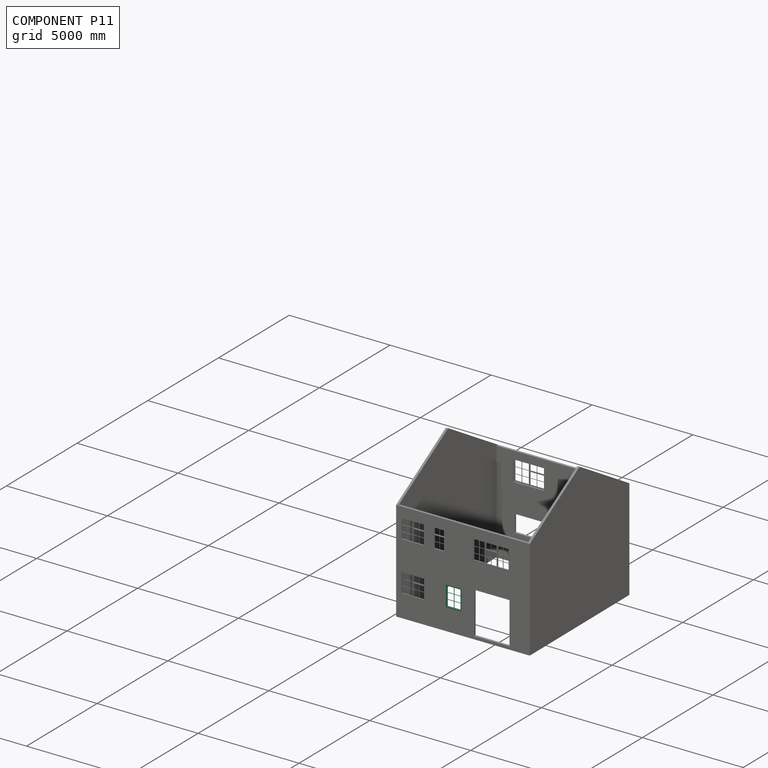
[diagram: component P11 — assembled]
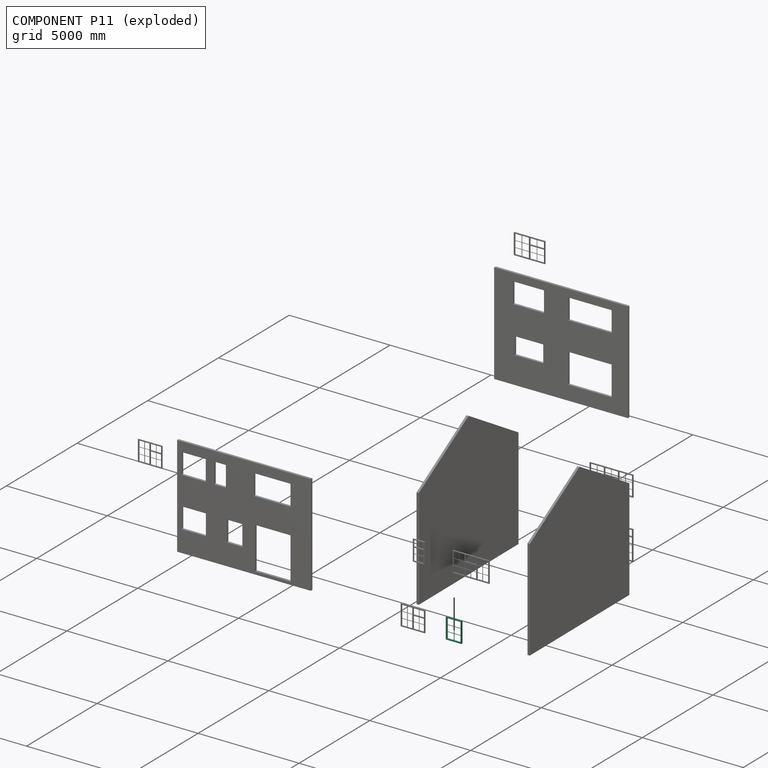
[diagram: component P11 — exploded]
COMPONENT P11 — recipe-attached (CADFS 00879207, mesh-verified: the recipe's output STEP matches this component's geometry to below the mesh-comparison resolution (tessellation chordal tolerance ~1.92 mm)).
Held by: PLANAR mate "Planar 32" to P8; PLANAR mate "Planar 34" to P8; PLANAR mate "Planar 33" to P8.
Construction recipe (FeatureScript — the CAD program that rebuilds this solid; sketch coordinates are in the units given by the * unit suffixes, e.g. mm):

FeatureScript 2599;
import(path : "onshape/std/geometry.fs", version : "2599.0");
import(path : "onshape/std/common.fs", version : "2599.0");
const mm = millimeter;
const VERTEX = EntityType.VERTEX;
const EDGE = EntityType.EDGE;
const FACE = EntityType.FACE;
const BODY = EntityType.BODY;
function v(x, y){return vector(x, y);}
function OD(order){return orderDisambiguation(order);}
function OSD(set){return originalSetDisambiguation(set);}
function TD(topology){return topologyDisambiguation(topology);}
function TDD(query){return trueDependencyDisambiguation(query);}
function sQuery(a, b, c) {return sketchEntityQuery(a, b, c);}

annotation { "Feature Type Name" : "Feature", "Feature Type Description" : "" }
export const myFeature = defineFeature(function(context is Context, id is Id, definition is map)
    precondition{}
    {
        {
            var Q0;
            Q0=qCreatedBy(makeId("Front.planeOp"),FACE);
            var sketch = newSketch(context, id + "F0", { "sketchPlane" : qUnion([Q0])});
            skLineSegment(sketch, "E0.bottom", {"start": v(-388.14, 502.28) * mm, "end": v(381.86, 502.28) * mm});
            skLineSegment(sketch, "E0.top", {"start": v(-388.14, -517.72) * mm, "end": v(381.86, -517.72) * mm});
            skLineSegment(sketch, "E0.left", {"start": v(-388.14, 502.28) * mm, "end": v(-388.14, -517.72) * mm});
            skLineSegment(sketch, "E0.right", {"start": v(381.86, 502.28) * mm, "end": v(381.86, -517.72) * mm});
            skLineSegment(sketch, "E1.bottom", {"start": v(-343.14, 457.28) * mm, "end": v(336.86, 457.28) * mm});
            skLineSegment(sketch, "E1.top", {"start": v(-343.14, -472.72) * mm, "end": v(336.86, -472.72) * mm});
            skLineSegment(sketch, "E1.left", {"start": v(-343.14, 457.28) * mm, "end": v(-343.14, -472.72) * mm});
            skLineSegment(sketch, "E1.right", {"start": v(336.86, 457.28) * mm, "end": v(336.86, -472.72) * mm});
            skSolve(sketch);
        }
        {
            var Q0;
            Q0=qSketchRegion(id+"F0",true);
            extrude(context, id + "F1", {"entities" : qUnion([Q0]), "depth" : 50 * mm, "offsetDistance" : 25 * mm, "hasSecondDirection" : true, "secondDirectionOppositeDirection" : true, "secondDirectionDepth" : 25 * mm});
        }
        {
            var Q0;
            Q0=qCreatedBy(makeId("Front.planeOp"),FACE);
            var sketch = newSketch(context, id + "F2", { "sketchPlane" : qUnion([Q0])});
            skLineSegment(sketch, "E2.bottom", {"start": v(-10.64, 457.28) * mm, "end": v(4.36, 457.28) * mm});
            skLineSegment(sketch, "E2.top", {"start": v(-10.64, -472.72) * mm, "end": v(4.36, -472.72) * mm});
            skLineSegment(sketch, "E2.left", {"start": v(-10.64, 457.28) * mm, "end": v(-10.64, 157.28) * mm});
            skLineSegment(sketch, "E2.right", {"start": v(4.36, 457.28) * mm, "end": v(4.36, 157.28) * mm});
            skLineSegment(sketch, "E3.bottom", {"start": v(-343.14, 157.28) * mm, "end": v(-10.64, 157.28) * mm});
            skLineSegment(sketch, "E3.top", {"start": v(-343.14, 142.28) * mm, "end": v(-10.64, 142.28) * mm});
            skLineSegment(sketch, "E3.left", {"start": v(-343.14, 157.28) * mm, "end": v(-343.14, 142.28) * mm});
            skLineSegment(sketch, "E3.right", {"start": v(336.86, 157.28) * mm, "end": v(336.86, 142.28) * mm});
            skLineSegment(sketch, "E4.bottom", {"start": v(-343.14, -157.72) * mm, "end": v(-10.64, -157.72) * mm});
            skLineSegment(sketch, "E4.top", {"start": v(-343.14, -172.72) * mm, "end": v(-10.64, -172.72) * mm});
            skLineSegment(sketch, "E4.left", {"start": v(-343.14, -157.72) * mm, "end": v(-343.14, -172.72) * mm});
            skLineSegment(sketch, "E4.right", {"start": v(336.86, -157.72) * mm, "end": v(336.86, -172.72) * mm});
            skLineSegment(sketch, "E5.trimOffspring", {"start": v(4.36, 157.28) * mm, "end": v(336.86, 157.28) * mm});
            skLineSegment(sketch, "E6.trimOffspring", {"start": v(-10.64, 142.28) * mm, "end": v(-10.64, -157.72) * mm});
            skLineSegment(sketch, "E7.trimOffspring", {"start": v(4.36, 142.28) * mm, "end": v(336.86, 142.28) * mm});
            skLineSegment(sketch, "E8.trimOffspring", {"start": v(4.36, 142.28) * mm, "end": v(4.36, -157.72) * mm});
            skLineSegment(sketch, "E9.trimOffspring", {"start": v(4.36, -172.72) * mm, "end": v(336.86, -172.72) * mm});
            skLineSegment(sketch, "E10.trimOffspring", {"start": v(4.36, -157.72) * mm, "end": v(336.86, -157.72) * mm});
            skLineSegment(sketch, "E11.trimOffspring", {"start": v(-10.64, -172.72) * mm, "end": v(-10.64, -472.72) * mm});
            skLineSegment(sketch, "E12.trimOffspring", {"start": v(4.36, -172.72) * mm, "end": v(4.36, -472.72) * mm});
            skSolve(sketch);
        }
        {
            var Q0;
            Q0=qSketchRegion(id+"F2",true);
            extrude(context, id + "F3", {"entities" : qUnion([Q0]), "operationType" : NewBodyOperationType.ADD, "depth" : 20 * mm, "offsetDistance" : 25 * mm});
        }
    });
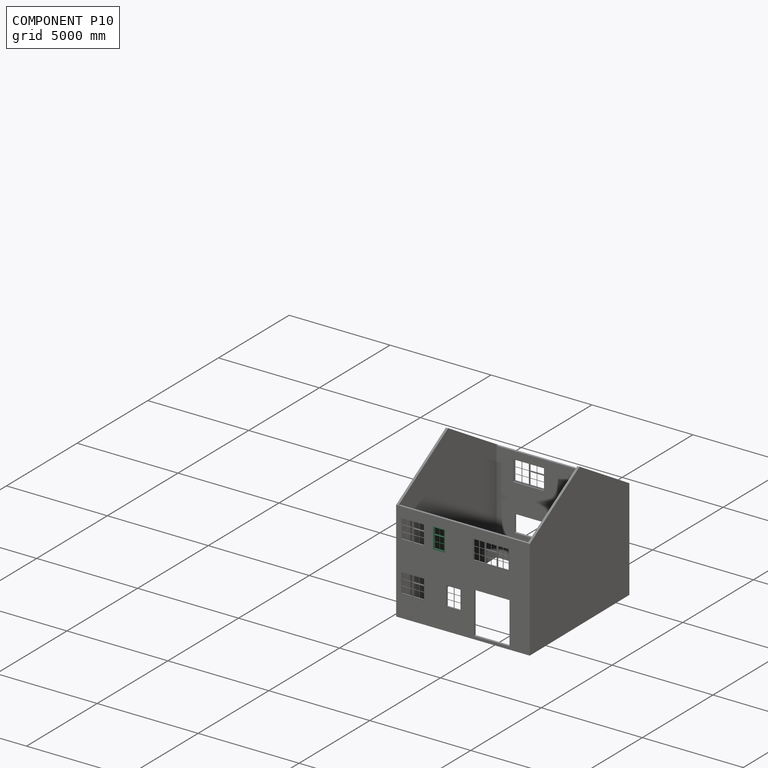
[diagram: component P10 — assembled]
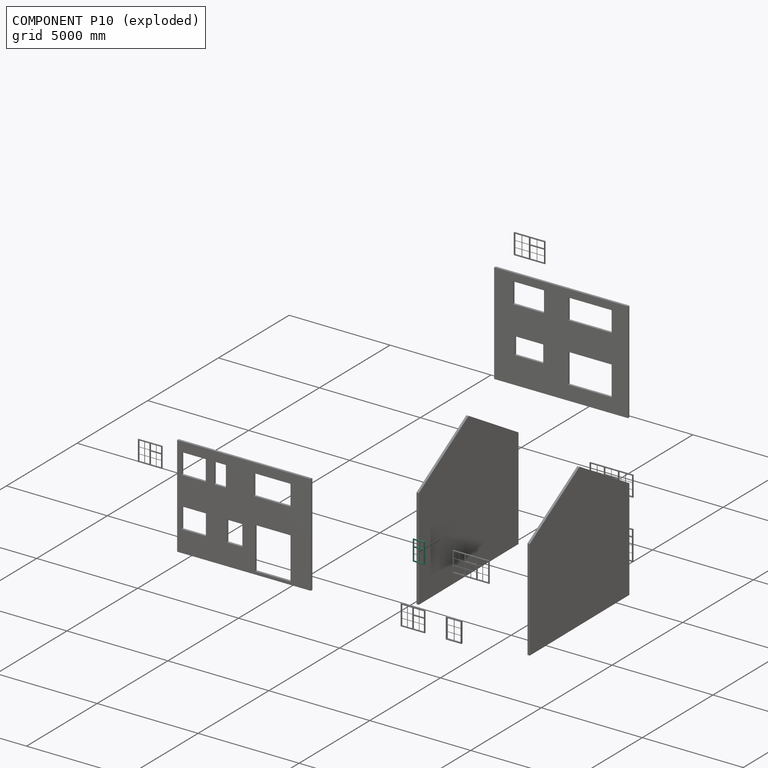
[diagram: component P10 — exploded]
COMPONENT P10 — recipe-attached (CADFS 00846602, mesh-verified: the recipe's output STEP matches this component's geometry to below the mesh-comparison resolution (tessellation chordal tolerance ~1.76 mm)).
Held by: PLANAR mate "Planar 31" to P8; PLANAR mate "Planar 30" to P8; PLANAR mate "Planar 29" to P8.
Construction recipe (FeatureScript — the CAD program that rebuilds this solid; sketch coordinates are in the units given by the * unit suffixes, e.g. mm):

FeatureScript 2522;
import(path : "onshape/std/geometry.fs", version : "2522.0");
import(path : "onshape/std/common.fs", version : "2522.0");
const mm = millimeter;
const VERTEX = EntityType.VERTEX;
const EDGE = EntityType.EDGE;
const FACE = EntityType.FACE;
const BODY = EntityType.BODY;
function v(x, y){return vector(x, y);}
function OD(order){return orderDisambiguation(order);}
function OSD(set){return originalSetDisambiguation(set);}
function TD(topology){return topologyDisambiguation(topology);}
function TDD(query){return trueDependencyDisambiguation(query);}
function sQuery(a, b, c) {return sketchEntityQuery(a, b, c);}

annotation { "Feature Type Name" : "Feature", "Feature Type Description" : "" }
export const myFeature = defineFeature(function(context is Context, id is Id, definition is map)
    precondition{}
    {
        {
            var Q0;
            Q0=qCreatedBy(makeId("Front.planeOp"),FACE);
            var sketch = newSketch(context, id + "F0", { "sketchPlane" : qUnion([Q0])});
            skLineSegment(sketch, "E0.bottom", {"start": v(0, 0) * mm, "end": v(580, 0) * mm});
            skLineSegment(sketch, "E0.top", {"start": v(0, 1020) * mm, "end": v(580, 1020) * mm});
            skLineSegment(sketch, "E0.left", {"start": v(0, 0) * mm, "end": v(0, 1020) * mm});
            skLineSegment(sketch, "E0.right", {"start": v(580, 0) * mm, "end": v(580, 1020) * mm});
            skLineSegment(sketch, "E1.bottom", {"start": v(45, 975) * mm, "end": v(535, 975) * mm});
            skLineSegment(sketch, "E1.top", {"start": v(45, 45) * mm, "end": v(535, 45) * mm});
            skLineSegment(sketch, "E1.left", {"start": v(45, 975) * mm, "end": v(45, 682.5) * mm});
            skLineSegment(sketch, "E1.right", {"start": v(535, 975) * mm, "end": v(535, 682.5) * mm});
            skLineSegment(sketch, "E2.bottom", {"start": v(45, 682.5) * mm, "end": v(535, 682.5) * mm});
            skLineSegment(sketch, "E2.top", {"start": v(45, 637.5) * mm, "end": v(535, 637.5) * mm});
            skLineSegment(sketch, "E3.trimOffspring", {"start": v(535, 637.5) * mm, "end": v(535, 45) * mm});
            skLineSegment(sketch, "E4.trimOffspring", {"start": v(45, 637.5) * mm, "end": v(45, 45) * mm});
            skSolve(sketch);
        }
        {
            var Q0;
            Q0=qSketchRegion(id+"F0",true);
            extrude(context, id + "F1", {"entities" : qUnion([Q0]), "depth" : 50 * mm, "offsetDistance" : 25 * mm});
        }
        {
            var Q0;
            Q0=qCreatedBy(makeId("Front.planeOp"),FACE);
            var sketch = newSketch(context, id + "F2", { "sketchPlane" : qUnion([Q0])});
            skLineSegment(sketch, "E5.bottom", {"start": v(282.5, 975) * mm, "end": v(297.5, 975) * mm});
            skLineSegment(sketch, "E5.top", {"start": v(282.5, 682.5) * mm, "end": v(297.5, 682.5) * mm});
            skLineSegment(sketch, "E5.left", {"start": v(282.5, 975) * mm, "end": v(282.5, 682.5) * mm});
            skLineSegment(sketch, "E5.right", {"start": v(297.5, 975) * mm, "end": v(297.5, 682.5) * mm});
            skLineSegment(sketch, "E6.bottom", {"start": v(282.5, 637.5) * mm, "end": v(297.5, 637.5) * mm});
            skLineSegment(sketch, "E6.top", {"start": v(282.5, 45) * mm, "end": v(297.5, 45) * mm});
            skLineSegment(sketch, "E6.left", {"start": v(282.5, 637.5) * mm, "end": v(282.5, 348.75) * mm});
            skLineSegment(sketch, "E6.right", {"start": v(297.5, 637.5) * mm, "end": v(297.5, 348.75) * mm});
            skLineSegment(sketch, "E7.bottom", {"start": v(45, 348.75) * mm, "end": v(282.5, 348.75) * mm});
            skLineSegment(sketch, "E7.top", {"start": v(45, 333.75) * mm, "end": v(282.5, 333.75) * mm});
            skLineSegment(sketch, "E7.left", {"start": v(45, 348.75) * mm, "end": v(45, 333.75) * mm});
            skLineSegment(sketch, "E7.right", {"start": v(535, 348.75) * mm, "end": v(535, 333.75) * mm});
            skLineSegment(sketch, "E8.trimOffspring", {"start": v(297.5, 348.75) * mm, "end": v(535, 348.75) * mm});
            skLineSegment(sketch, "E9.trimOffspring", {"start": v(282.5, 333.75) * mm, "end": v(282.5, 45) * mm});
            skLineSegment(sketch, "E10.trimOffspring", {"start": v(297.5, 333.75) * mm, "end": v(535, 333.75) * mm});
            skLineSegment(sketch, "E11.trimOffspring", {"start": v(297.5, 333.75) * mm, "end": v(297.5, 45) * mm});
            skSolve(sketch);
        }
        {
            var Q0;
            Q0 = qSketchRegion(id + "F2", true);
            extrude(context, id + "F3", {"entities" : qUnion([Q0]), "operationType" : NewBodyOperationType.ADD, "depth" : 20 * mm, "offsetDistance" : 25 * mm});
        }
    });
